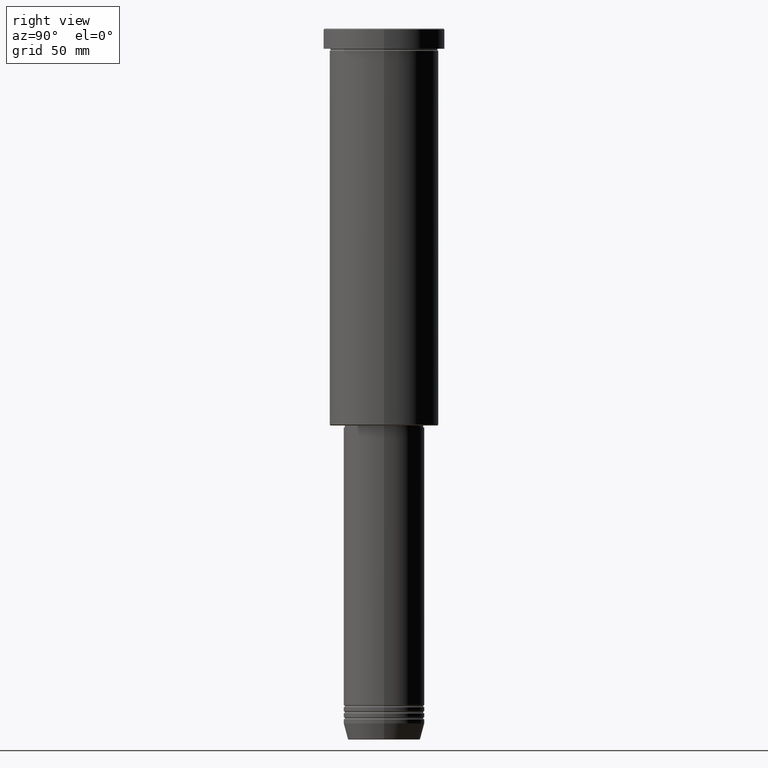
[diagram: clean part render]
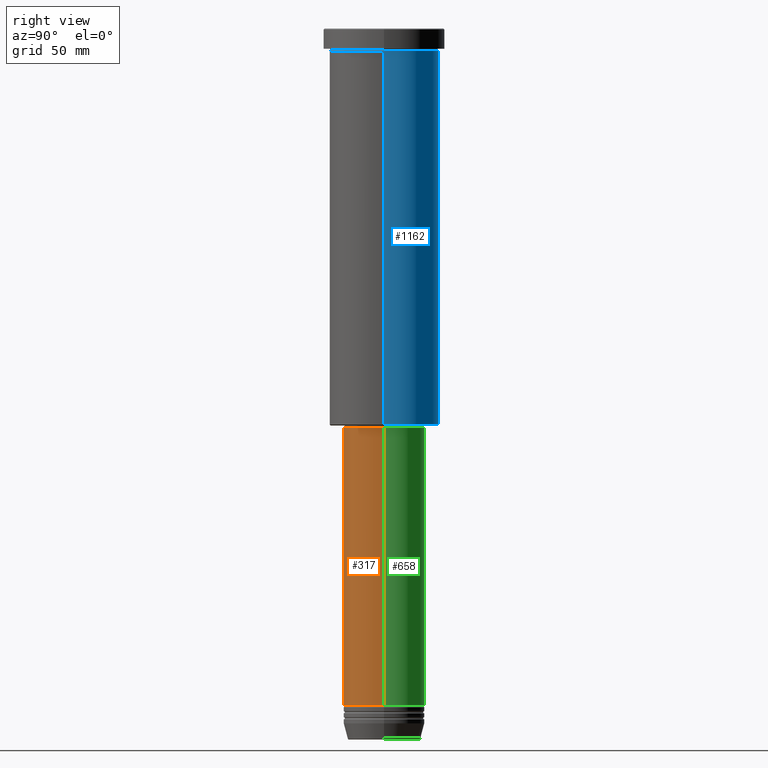
[diagram: same view with three faces highlighted in distinct colors, each labeled with its STEP entity id]
A machine part, right view with three faces highlighted in distinct colors.
Their STEP definitions:

[orange] entity #317 — the highlighted cylindrical surface (partial cylindrical patch) has radius 20 mm, axis along (-0, -0, 1).
#44 = VECTOR ( 'NONE', #101, 1000.000000000000000 ) ;
#82 = CYLINDRICAL_SURFACE ( 'NONE', #1166, 20.00000000000000000 ) ;
#101 = DIRECTION ( 'NONE',  ( -0.000000000000000000, -0.000000000000000000, 1.000000000000000000 ) ) ;
#173 = AXIS2_PLACEMENT_3D ( 'NONE', #1104, #297, #767 ) ;
#175 = EDGE_CURVE ( 'NONE', #204, #570, #1015, .T. ) ;
#196 = DIRECTION ( 'NONE',  ( -0.000000000000000000, -0.000000000000000000, 1.000000000000000000 ) ) ;
#204 = VERTEX_POINT ( 'NONE', #1152 ) ;
#227 = ORIENTED_EDGE ( 'NONE', *, *, #825, .T. ) ;
#295 = CIRCLE ( 'NONE', #706, 20.00000000000000000 ) ;
#297 = DIRECTION ( 'NONE',  ( -0.000000000000000000, -0.000000000000000000, 1.000000000000000000 ) ) ;
#301 = VERTEX_POINT ( 'NONE', #1115 ) ;
#303 = ORIENTED_EDGE ( 'NONE', *, *, #790, .T. ) ;
#317 = ADVANCED_FACE ( 'NONE', ( #487 ), #82, .T. ) ;
#384 = EDGE_CURVE ( 'NONE', #570, #301, #438, .T. ) ;
#394 = DIRECTION ( 'NONE',  ( 1.000000000000000000, 0.000000000000000000, 0.000000000000000000 ) ) ;
#434 = ORIENTED_EDGE ( 'NONE', *, *, #384, .F. ) ;
#438 = CIRCLE ( 'NONE', #173, 20.00000000000000000 ) ;
#468 = CARTESIAN_POINT ( 'NONE',  ( -20.00000000000000000, 2.449293598294706513E-15, 0.000000000000000000 ) ) ;
#487 = FACE_OUTER_BOUND ( 'NONE', #633, .T. ) ;
#528 = CARTESIAN_POINT ( 'NONE',  ( 0.000000000000000000, 0.000000000000000000, -334.0000000000000000 ) ) ;
#546 = DIRECTION ( 'NONE',  ( -0.000000000000000000, -0.000000000000000000, 1.000000000000000000 ) ) ;
#549 = LINE ( 'NONE', #918, #44 ) ;
#570 = VERTEX_POINT ( 'NONE', #1175 ) ;
#633 = EDGE_LOOP ( 'NONE', ( #1004, #227, #303, #434 ) ) ;
#635 = CARTESIAN_POINT ( 'NONE',  ( 0.000000000000000000, 0.000000000000000000, 0.000000000000000000 ) ) ;
#706 = AXIS2_PLACEMENT_3D ( 'NONE', #528, #546, #816 ) ;
#728 = VERTEX_POINT ( 'NONE', #1154 ) ;
#758 = VECTOR ( 'NONE', #926, 1000.000000000000000 ) ;
#767 = DIRECTION ( 'NONE',  ( 1.000000000000000000, 0.000000000000000000, 0.000000000000000000 ) ) ;
#790 = EDGE_CURVE ( 'NONE', #728, #301, #549, .T. ) ;
#816 = DIRECTION ( 'NONE',  ( 1.000000000000000000, 0.000000000000000000, 0.000000000000000000 ) ) ;
#825 = EDGE_CURVE ( 'NONE', #204, #728, #295, .T. ) ;
#918 = CARTESIAN_POINT ( 'NONE',  ( 20.00000000000000000, 0.000000000000000000, 0.000000000000000000 ) ) ;
#926 = DIRECTION ( 'NONE',  ( -0.000000000000000000, -0.000000000000000000, 1.000000000000000000 ) ) ;
#1004 = ORIENTED_EDGE ( 'NONE', *, *, #175, .F. ) ;
#1015 = LINE ( 'NONE', #468, #758 ) ;
#1104 = CARTESIAN_POINT ( 'NONE',  ( 0.000000000000000000, 0.000000000000000000, -196.9999999999999432 ) ) ;
#1115 = CARTESIAN_POINT ( 'NONE',  ( 20.00000000000000000, 0.000000000000000000, -196.9999999999999432 ) ) ;
#1152 = CARTESIAN_POINT ( 'NONE',  ( -20.00000000000000000, 2.449293598294706513E-15, -334.0000000000000000 ) ) ;
#1154 = CARTESIAN_POINT ( 'NONE',  ( 20.00000000000000000, 0.000000000000000000, -334.0000000000000000 ) ) ;
#1166 = AXIS2_PLACEMENT_3D ( 'NONE', #635, #196, #394 ) ;
#1175 = CARTESIAN_POINT ( 'NONE',  ( -20.00000000000000000, 2.449293598294706513E-15, -196.9999999999999432 ) ) ;

[blue] entity #1162 — the highlighted cylindrical surface (partial cylindrical patch) has radius 27 mm, axis along (-0, -0, 1).
#39 = CARTESIAN_POINT ( 'NONE',  ( -27.00000000000000355, 3.306546357697854128E-15, 0.000000000000000000 ) ) ;
#40 = CIRCLE ( 'NONE', #1123, 27.00000000000000355 ) ;
#43 = ORIENTED_EDGE ( 'NONE', *, *, #299, .F. ) ;
#54 = LINE ( 'NONE', #39, #670 ) ;
#91 = CARTESIAN_POINT ( 'NONE',  ( 27.00000000000000355, 0.000000000000000000, 0.000000000000000000 ) ) ;
#145 = VERTEX_POINT ( 'NONE', #831 ) ;
#150 = DIRECTION ( 'NONE',  ( -1.000000000000000000, 0.000000000000000000, 0.000000000000000000 ) ) ;
#177 = CARTESIAN_POINT ( 'NONE',  ( 27.00000000000000355, 0.000000000000000000, -195.5000000000000568 ) ) ;
#179 = CARTESIAN_POINT ( 'NONE',  ( -27.00000000000000355, 3.306546357697854128E-15, -195.5000000000000568 ) ) ;
#207 = ORIENTED_EDGE ( 'NONE', *, *, #1086, .T. ) ;
#247 = CARTESIAN_POINT ( 'NONE',  ( 0.000000000000000000, 0.000000000000000000, -195.5000000000000568 ) ) ;
#296 = AXIS2_PLACEMENT_3D ( 'NONE', #1083, #1171, #694 ) ;
#299 = EDGE_CURVE ( 'NONE', #145, #788, #40, .T. ) ;
#337 = DIRECTION ( 'NONE',  ( -0.000000000000000000, -0.000000000000000000, 1.000000000000000000 ) ) ;
#343 = DIRECTION ( 'NONE',  ( -0.000000000000000000, -0.000000000000000000, 1.000000000000000000 ) ) ;
#355 = FACE_OUTER_BOUND ( 'NONE', #531, .T. ) ;
#392 = CARTESIAN_POINT ( 'NONE',  ( 0.000000000000000000, 0.000000000000000000, -10.99999999999999289 ) ) ;
#453 = CARTESIAN_POINT ( 'NONE',  ( -27.00000000000000355, 3.306546357697854128E-15, -10.99999999999999289 ) ) ;
#489 = ORIENTED_EDGE ( 'NONE', *, *, #1048, .T. ) ;
#531 = EDGE_LOOP ( 'NONE', ( #207, #489, #43, #707 ) ) ;
#575 = VECTOR ( 'NONE', #822, 1000.000000000000000 ) ;
#636 = LINE ( 'NONE', #91, #575 ) ;
#670 = VECTOR ( 'NONE', #343, 1000.000000000000000 ) ;
#694 = DIRECTION ( 'NONE',  ( 1.000000000000000000, 0.000000000000000000, 0.000000000000000000 ) ) ;
#707 = ORIENTED_EDGE ( 'NONE', *, *, #876, .F. ) ;
#722 = CIRCLE ( 'NONE', #1053, 27.00000000000000355 ) ;
#744 = VERTEX_POINT ( 'NONE', #179 ) ;
#747 = DIRECTION ( 'NONE',  ( -0.000000000000000000, -0.000000000000000000, 1.000000000000000000 ) ) ;
#751 = DIRECTION ( 'NONE',  ( 1.000000000000000000, 0.000000000000000000, 0.000000000000000000 ) ) ;
#788 = VERTEX_POINT ( 'NONE', #453 ) ;
#801 = CYLINDRICAL_SURFACE ( 'NONE', #296, 27.00000000000000355 ) ;
#822 = DIRECTION ( 'NONE',  ( -0.000000000000000000, -0.000000000000000000, 1.000000000000000000 ) ) ;
#831 = CARTESIAN_POINT ( 'NONE',  ( 27.00000000000000355, 0.000000000000000000, -10.99999999999999289 ) ) ;
#876 = EDGE_CURVE ( 'NONE', #1137, #145, #636, .T. ) ;
#1048 = EDGE_CURVE ( 'NONE', #744, #788, #54, .T. ) ;
#1053 = AXIS2_PLACEMENT_3D ( 'NONE', #247, #337, #150 ) ;
#1083 = CARTESIAN_POINT ( 'NONE',  ( 0.000000000000000000, 0.000000000000000000, 0.000000000000000000 ) ) ;
#1086 = EDGE_CURVE ( 'NONE', #1137, #744, #722, .T. ) ;
#1123 = AXIS2_PLACEMENT_3D ( 'NONE', #392, #747, #751 ) ;
#1137 = VERTEX_POINT ( 'NONE', #177 ) ;
#1162 = ADVANCED_FACE ( 'NONE', ( #355 ), #801, .T. ) ;
#1171 = DIRECTION ( 'NONE',  ( -0.000000000000000000, -0.000000000000000000, 1.000000000000000000 ) ) ;

[green] entity #658 — the highlighted cylindrical surface (partial cylindrical patch) has radius 20 mm, axis along (-0, -0, 1).
#4 = DIRECTION ( 'NONE',  ( 1.000000000000000000, 0.000000000000000000, 0.000000000000000000 ) ) ;
#25 = EDGE_LOOP ( 'NONE', ( #659, #904, #161, #1165 ) ) ;
#44 = VECTOR ( 'NONE', #101, 1000.000000000000000 ) ;
#98 = AXIS2_PLACEMENT_3D ( 'NONE', #713, #189, #4 ) ;
#101 = DIRECTION ( 'NONE',  ( -0.000000000000000000, -0.000000000000000000, 1.000000000000000000 ) ) ;
#152 = EDGE_CURVE ( 'NONE', #728, #204, #1145, .T. ) ;
#161 = ORIENTED_EDGE ( 'NONE', *, *, #778, .F. ) ;
#175 = EDGE_CURVE ( 'NONE', #204, #570, #1015, .T. ) ;
#189 = DIRECTION ( 'NONE',  ( -0.000000000000000000, -0.000000000000000000, 1.000000000000000000 ) ) ;
#204 = VERTEX_POINT ( 'NONE', #1152 ) ;
#215 = CARTESIAN_POINT ( 'NONE',  ( 0.000000000000000000, 0.000000000000000000, 0.000000000000000000 ) ) ;
#234 = CIRCLE ( 'NONE', #98, 20.00000000000000000 ) ;
#298 = FACE_OUTER_BOUND ( 'NONE', #25, .T. ) ;
#301 = VERTEX_POINT ( 'NONE', #1115 ) ;
#468 = CARTESIAN_POINT ( 'NONE',  ( -20.00000000000000000, 2.449293598294706513E-15, 0.000000000000000000 ) ) ;
#549 = LINE ( 'NONE', #918, #44 ) ;
#552 = AXIS2_PLACEMENT_3D ( 'NONE', #215, #930, #944 ) ;
#564 = CARTESIAN_POINT ( 'NONE',  ( 0.000000000000000000, 0.000000000000000000, -334.0000000000000000 ) ) ;
#570 = VERTEX_POINT ( 'NONE', #1175 ) ;
#658 = ADVANCED_FACE ( 'NONE', ( #298 ), #1012, .T. ) ;
#659 = ORIENTED_EDGE ( 'NONE', *, *, #152, .T. ) ;
#713 = CARTESIAN_POINT ( 'NONE',  ( 0.000000000000000000, 0.000000000000000000, -196.9999999999999432 ) ) ;
#728 = VERTEX_POINT ( 'NONE', #1154 ) ;
#758 = VECTOR ( 'NONE', #926, 1000.000000000000000 ) ;
#778 = EDGE_CURVE ( 'NONE', #301, #570, #234, .T. ) ;
#790 = EDGE_CURVE ( 'NONE', #728, #301, #549, .T. ) ;
#848 = DIRECTION ( 'NONE',  ( -0.000000000000000000, -0.000000000000000000, 1.000000000000000000 ) ) ;
#904 = ORIENTED_EDGE ( 'NONE', *, *, #175, .T. ) ;
#918 = CARTESIAN_POINT ( 'NONE',  ( 20.00000000000000000, 0.000000000000000000, 0.000000000000000000 ) ) ;
#926 = DIRECTION ( 'NONE',  ( -0.000000000000000000, -0.000000000000000000, 1.000000000000000000 ) ) ;
#930 = DIRECTION ( 'NONE',  ( -0.000000000000000000, -0.000000000000000000, 1.000000000000000000 ) ) ;
#931 = DIRECTION ( 'NONE',  ( 1.000000000000000000, 0.000000000000000000, 0.000000000000000000 ) ) ;
#944 = DIRECTION ( 'NONE',  ( 1.000000000000000000, 0.000000000000000000, 0.000000000000000000 ) ) ;
#1012 = CYLINDRICAL_SURFACE ( 'NONE', #552, 20.00000000000000000 ) ;
#1015 = LINE ( 'NONE', #468, #758 ) ;
#1027 = AXIS2_PLACEMENT_3D ( 'NONE', #564, #848, #931 ) ;
#1115 = CARTESIAN_POINT ( 'NONE',  ( 20.00000000000000000, 0.000000000000000000, -196.9999999999999432 ) ) ;
#1145 = CIRCLE ( 'NONE', #1027, 20.00000000000000000 ) ;
#1152 = CARTESIAN_POINT ( 'NONE',  ( -20.00000000000000000, 2.449293598294706513E-15, -334.0000000000000000 ) ) ;
#1154 = CARTESIAN_POINT ( 'NONE',  ( 20.00000000000000000, 0.000000000000000000, -334.0000000000000000 ) ) ;
#1165 = ORIENTED_EDGE ( 'NONE', *, *, #790, .F. ) ;
#1175 = CARTESIAN_POINT ( 'NONE',  ( -20.00000000000000000, 2.449293598294706513E-15, -196.9999999999999432 ) ) ;